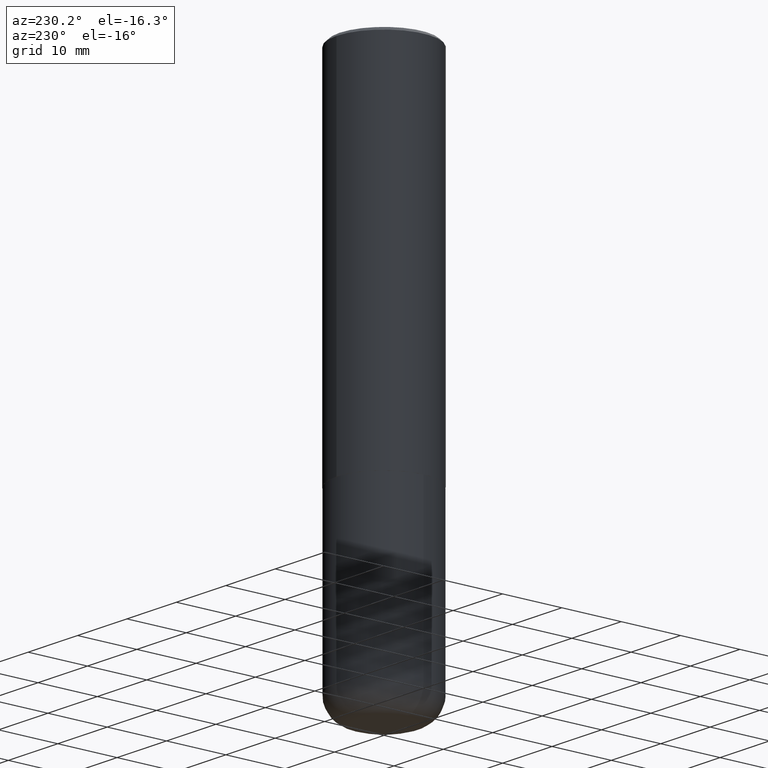
[diagram: clean part render]
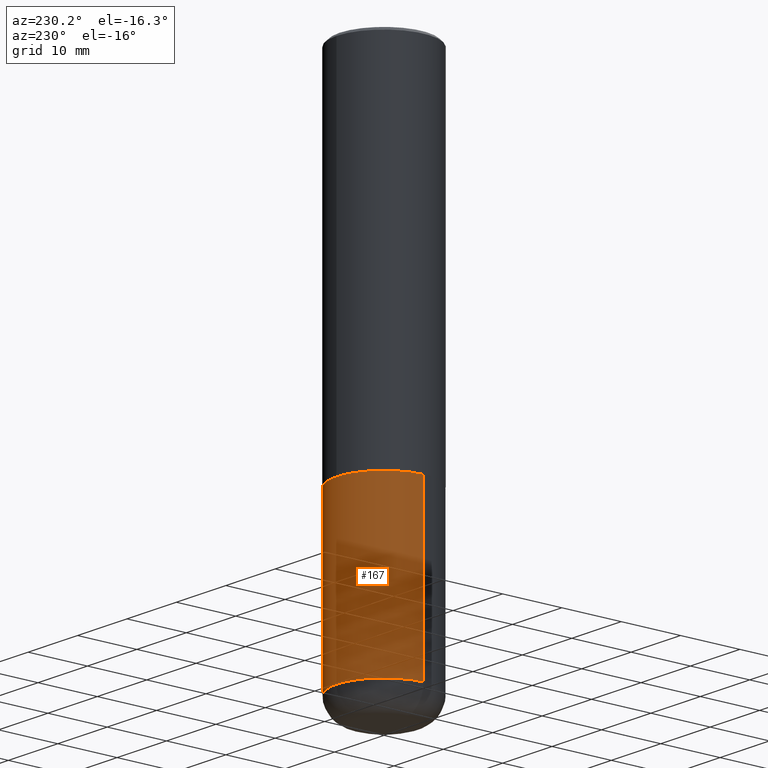
[diagram: same view with one face highlighted and labeled with its STEP entity id]
A machine part, auxiliary view. The second image highlights one B-rep face of the part: STEP entity #167.
In plain terms, the highlighted cylindrical surface (partial cylindrical patch) has radius 7.9997 mm, axis along (-0, 0, 1).
Its self-contained STEP definition (entity closure, byte-faithful):
#3 = DIRECTION ( 'NONE',  ( -2.445468806185136597E-29, 3.491481338843145583E-15, 1.000000000000000000 ) ) ;
#36 = DIRECTION ( 'NONE',  ( -2.445468806185136877E-29, 3.491481338843145188E-15, 1.000000000000000000 ) ) ;
#51 = ORIENTED_EDGE ( 'NONE', *, *, #80, .F. ) ;
#61 = FACE_OUTER_BOUND ( 'NONE', #117, .T. ) ;
#67 = DIRECTION ( 'NONE',  ( 1.000000000000000000, -6.982962677686266711E-15, 4.876176775795936353E-29 ) ) ;
#80 = EDGE_CURVE ( 'NONE', #163, #309, #325, .T. ) ;
#83 = DIRECTION ( 'NONE',  ( 1.000000000000000000, -6.982962677686266711E-15, 0.000000000000000000 ) ) ;
#96 = CARTESIAN_POINT ( 'NONE',  ( 0.000000000000000000, 0.000000000000000000, 0.000000000000000000 ) ) ;
#111 = AXIS2_PLACEMENT_3D ( 'NONE', #96, #414, #67 ) ;
#117 = EDGE_LOOP ( 'NONE', ( #408, #186, #332, #51 ) ) ;
#132 = VERTEX_POINT ( 'NONE', #323 ) ;
#156 = VERTEX_POINT ( 'NONE', #371 ) ;
#163 = VERTEX_POINT ( 'NONE', #352 ) ;
#167 = ADVANCED_FACE ( 'NONE', ( #61 ), #254, .T. ) ;
#181 = EDGE_CURVE ( 'NONE', #163, #132, #343, .T. ) ;
#184 = DIRECTION ( 'NONE',  ( 1.000000000000000000, -6.982962677686268288E-15, 0.000000000000000000 ) ) ;
#186 = ORIENTED_EDGE ( 'NONE', *, *, #238, .T. ) ;
#191 = EDGE_CURVE ( 'NONE', #309, #156, #360, .T. ) ;
#231 = VECTOR ( 'NONE', #276, 39.37007874015748143 ) ;
#238 = EDGE_CURVE ( 'NONE', #132, #156, #303, .T. ) ;
#254 = CYLINDRICAL_SURFACE ( 'NONE', #111, 0.3149500000000000077 ) ;
#269 = CARTESIAN_POINT ( 'NONE',  ( 0.3149500000000000077, -2.199284095337289871E-15, 1.535751875536930130E-29 ) ) ;
#276 = DIRECTION ( 'NONE',  ( -2.445468806185136877E-29, 3.491481338843145188E-15, 1.000000000000000000 ) ) ;
#298 = AXIS2_PLACEMENT_3D ( 'NONE', #357, #3, #184 ) ;
#303 = LINE ( 'NONE', #333, #231 ) ;
#309 = VERTEX_POINT ( 'NONE', #315 ) ;
#315 = CARTESIAN_POINT ( 'NONE',  ( 0.3149500000000000077, -1.044686131395256792E-14, -2.362199999999999633 ) ) ;
#323 = CARTESIAN_POINT ( 'NONE',  ( -0.3149500000000001743, -9.858382752145637926E-15, -3.464499999999999247 ) ) ;
#325 = LINE ( 'NONE', #269, #368 ) ;
#332 = ORIENTED_EDGE ( 'NONE', *, *, #191, .F. ) ;
#333 = CARTESIAN_POINT ( 'NONE',  ( -0.3149500000000000077, 2.237854346276435590E-15, -1.549218606675782676E-29 ) ) ;
#343 = CIRCLE ( 'NONE', #298, 0.3149500000000000632 ) ;
#352 = CARTESIAN_POINT ( 'NONE',  ( 0.3149500000000001743, -1.429552119375936694E-14, -3.464499999999999247 ) ) ;
#357 = CARTESIAN_POINT ( 'NONE',  ( 8.472326679028403758E-29, -1.209623709842207549E-14, -3.464499999999999247 ) ) ;
#360 = CIRCLE ( 'NONE', #409, 0.3149500000000000077 ) ;
#368 = VECTOR ( 'NONE', #36, 39.37007874015748143 ) ;
#371 = CARTESIAN_POINT ( 'NONE',  ( -0.3149500000000000077, -7.934052812242240784E-15, -2.362199999999999633 ) ) ;
#396 = CARTESIAN_POINT ( 'NONE',  ( 5.776686413970529753E-29, -8.247577218615278049E-15, -2.362199999999999633 ) ) ;
#405 = DIRECTION ( 'NONE',  ( -2.445468806185136597E-29, 3.491481338843145583E-15, 1.000000000000000000 ) ) ;
#408 = ORIENTED_EDGE ( 'NONE', *, *, #181, .T. ) ;
#409 = AXIS2_PLACEMENT_3D ( 'NONE', #396, #405, #83 ) ;
#414 = DIRECTION ( 'NONE',  ( -2.445468806185136597E-29, 3.491481338843145583E-15, 1.000000000000000000 ) ) ;